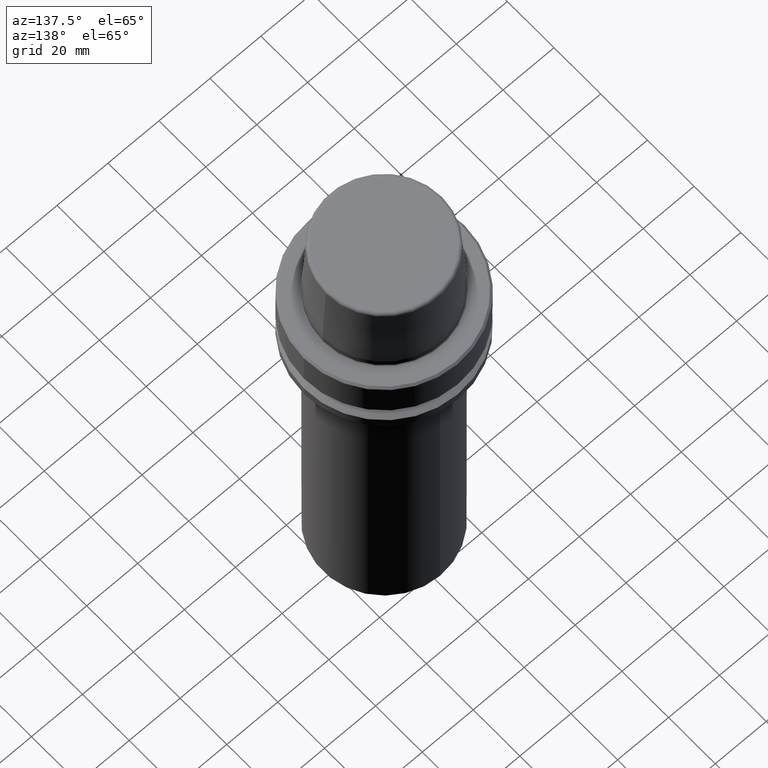
[diagram: clean part render]
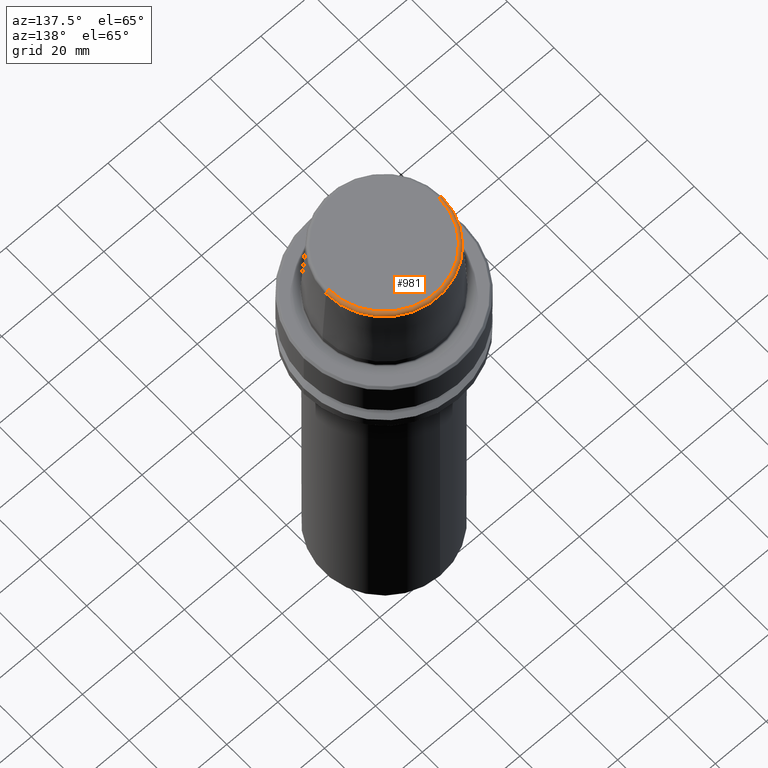
[diagram: same view with one face highlighted and labeled with its STEP entity id]
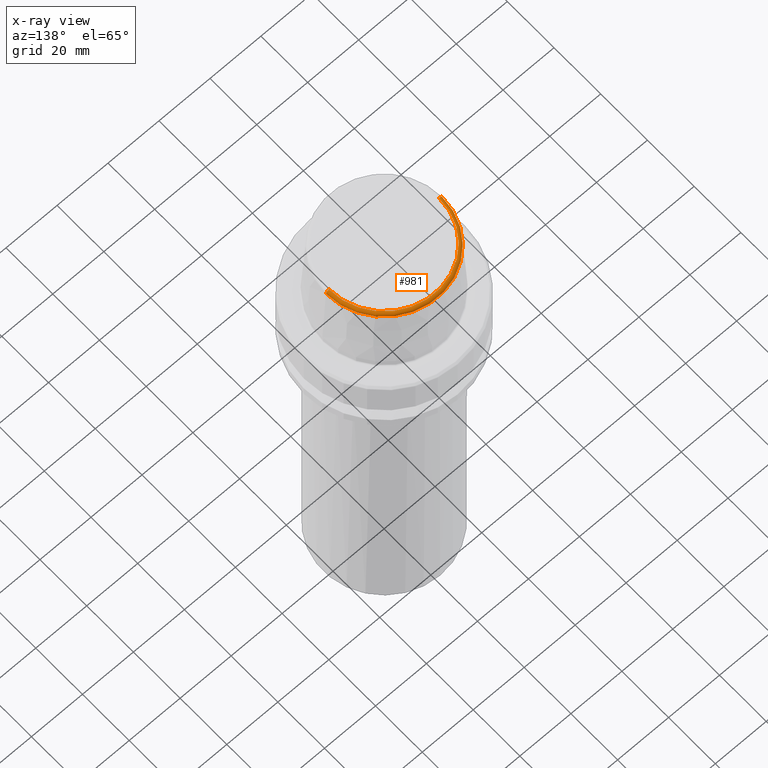
[diagram: x-ray of the same camera — body ghosted, the highlighted face saturated]
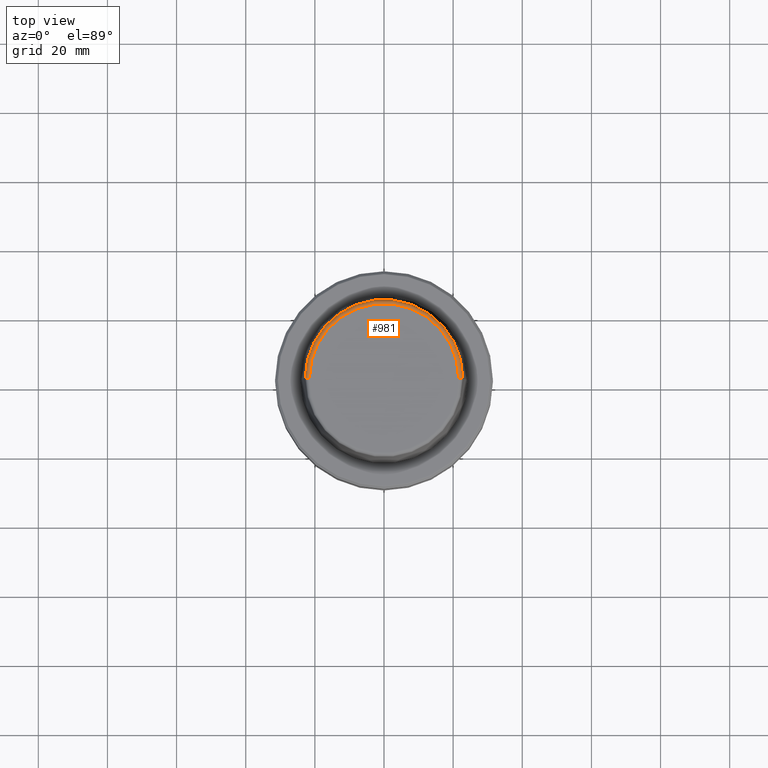
[diagram: same view with one face highlighted and labeled with its STEP entity id]
A machine part, auxiliary view. The second image highlights one B-rep face of the part: STEP entity #981.
The next image is the same camera in x-ray: the body ghosted, the highlighted face saturated — about 0% of this face is hidden behind the body in this view.
A second angle (top view) of the same face is appended — the face is thin or edge-on in the first view.
In plain terms, the highlighted toroidal blend (fillet) surface has major radius 21.5811 mm and minor (blend) radius 1.2 mm.
Its self-contained STEP definition (entity closure, byte-faithful):
#47 = AXIS2_PLACEMENT_3D ( 'NONE', #62, #734, #172 ) ;
#61 = AXIS2_PLACEMENT_3D ( 'NONE', #630, #165, #357 ) ;
#62 = CARTESIAN_POINT ( 'NONE',  ( 0.0000000000000000000, 0.0000000000000000000, 30.76004333261571900 ) ) ;
#109 = DIRECTION ( 'NONE',  ( -1.000000000000000000, 1.224646799147353200E-016, 0.0000000000000000000 ) ) ;
#160 = EDGE_CURVE ( 'NONE', #353, #467, #501, .T. ) ;
#165 = DIRECTION ( 'NONE',  ( -0.0000000000000000000, -0.0000000000000000000, 1.000000000000000000 ) ) ;
#172 = DIRECTION ( 'NONE',  ( 1.000000000000000000, 0.0000000000000000000, 0.0000000000000000000 ) ) ;
#183 = CARTESIAN_POINT ( 'NONE',  ( 21.58108272732117100, 0.0000000000000000000, 30.69999999999999200 ) ) ;
#208 = CARTESIAN_POINT ( 'NONE',  ( -21.58108272732117100, 2.642920388414810300E-015, 30.69999999999999200 ) ) ;
#272 = DIRECTION ( 'NONE',  ( 0.0000000000000000000, 0.0000000000000000000, -1.000000000000000000 ) ) ;
#309 = AXIS2_PLACEMENT_3D ( 'NONE', #457, #1145, #543 ) ;
#323 = AXIS2_PLACEMENT_3D ( 'NONE', #183, #849, #272 ) ;
#349 = CARTESIAN_POINT ( 'NONE',  ( -21.58108272732117100, 2.716307157494421400E-015, 31.89999999999999900 ) ) ;
#353 = VERTEX_POINT ( 'NONE', #577 ) ;
#357 = DIRECTION ( 'NONE',  ( 1.000000000000000000, 0.0000000000000000000, 0.0000000000000000000 ) ) ;
#369 = FACE_OUTER_BOUND ( 'NONE', #1015, .T. ) ;
#398 = DIRECTION ( 'NONE',  ( 1.224646799147353200E-016, 1.000000000000000000, 0.0000000000000000000 ) ) ;
#457 = CARTESIAN_POINT ( 'NONE',  ( 0.0000000000000000000, 0.0000000000000000000, 31.89999999999999900 ) ) ;
#467 = VERTEX_POINT ( 'NONE', #349 ) ;
#501 = CIRCLE ( 'NONE', #916, 1.200000000000003100 ) ;
#533 = CARTESIAN_POINT ( 'NONE',  ( 21.58108272732117100, 0.0000000000000000000, 31.89999999999999900 ) ) ;
#543 = DIRECTION ( 'NONE',  ( 1.000000000000000000, 0.0000000000000000000, 0.0000000000000000000 ) ) ;
#577 = CARTESIAN_POINT ( 'NONE',  ( -22.77957961851797100, 0.0000000000000000000, 30.76004333261571900 ) ) ;
#602 = CIRCLE ( 'NONE', #47, 22.77957961851797100 ) ;
#630 = CARTESIAN_POINT ( 'NONE',  ( 0.0000000000000000000, 0.0000000000000000000, 30.69999999999999200 ) ) ;
#660 = ORIENTED_EDGE ( 'NONE', *, *, #160, .T. ) ;
#720 = CARTESIAN_POINT ( 'NONE',  ( 22.77957961851797100, 2.874852597157249900E-015, 30.76004333261571900 ) ) ;
#723 = VERTEX_POINT ( 'NONE', #533 ) ;
#731 = ORIENTED_EDGE ( 'NONE', *, *, #880, .F. ) ;
#734 = DIRECTION ( 'NONE',  ( -0.0000000000000000000, -0.0000000000000000000, 1.000000000000000000 ) ) ;
#738 = ORIENTED_EDGE ( 'NONE', *, *, #1005, .T. ) ;
#849 = DIRECTION ( 'NONE',  ( 0.0000000000000000000, -1.000000000000000000, 0.0000000000000000000 ) ) ;
#880 = EDGE_CURVE ( 'NONE', #962, #723, #1053, .T. ) ;
#899 = ORIENTED_EDGE ( 'NONE', *, *, #1064, .F. ) ;
#916 = AXIS2_PLACEMENT_3D ( 'NONE', #208, #398, #109 ) ;
#962 = VERTEX_POINT ( 'NONE', #720 ) ;
#981 = ADVANCED_FACE ( 'NONE', ( #369 ), #1147, .T. ) ;
#1005 = EDGE_CURVE ( 'NONE', #962, #353, #602, .T. ) ;
#1015 = EDGE_LOOP ( 'NONE', ( #738, #660, #899, #731 ) ) ;
#1053 = CIRCLE ( 'NONE', #323, 1.200000000000003100 ) ;
#1064 = EDGE_CURVE ( 'NONE', #723, #467, #1177, .T. ) ;
#1145 = DIRECTION ( 'NONE',  ( -0.0000000000000000000, -0.0000000000000000000, 1.000000000000000000 ) ) ;
#1147 = TOROIDAL_SURFACE ( 'NONE', #61, 21.58108272732117100, 1.200000000000003100 ) ;
#1177 = CIRCLE ( 'NONE', #309, 21.58108272732117100 ) ;